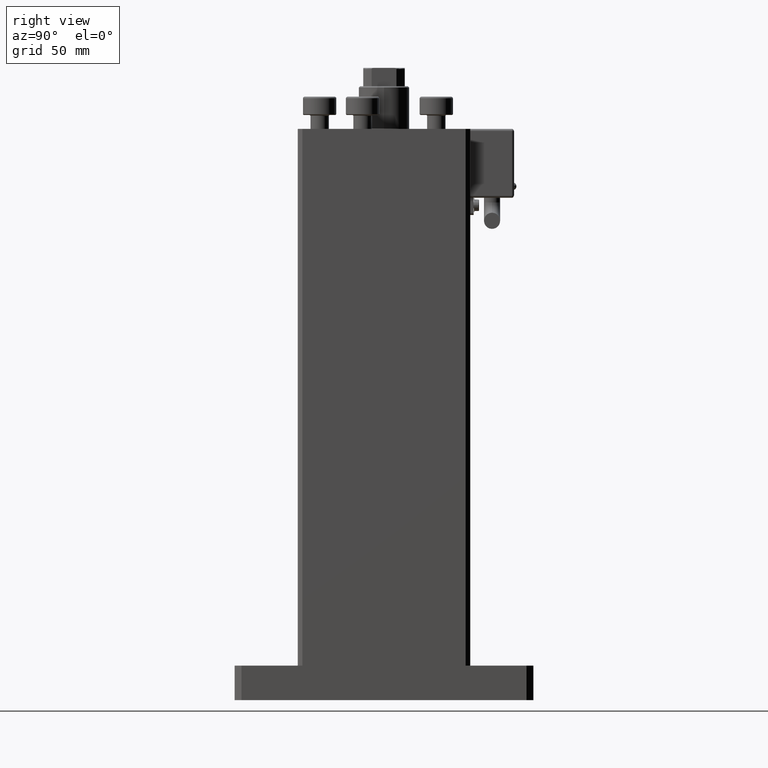
[diagram: clean part render]
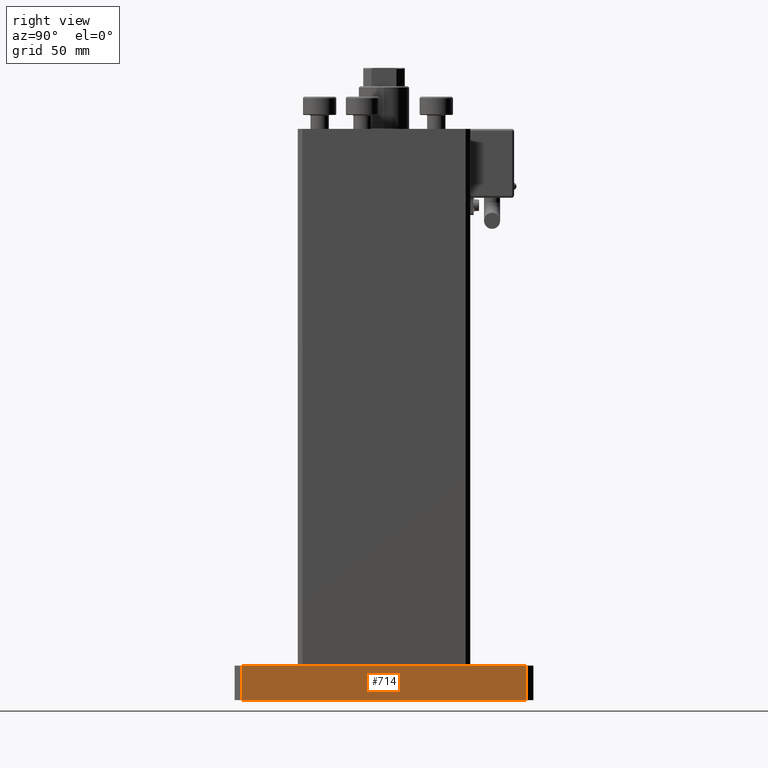
[diagram: same view with one face highlighted and labeled with its STEP entity id]
A machine part, right view. The second image highlights one B-rep face of the part: STEP entity #714.
In plain terms, the highlighted planar face has unit normal (-1, 0, 0).
Its self-contained STEP definition (entity closure, byte-faithful):
#714 = ADVANCED_FACE ( 'NONE', ( #8629 ), #3778, .F. ) ;
#1911 = ORIENTED_EDGE ( 'NONE', *, *, #45597, .T. ) ;
#3498 = LINE ( 'NONE', #8327, #19780 ) ;
#3722 = CARTESIAN_POINT ( 'NONE',  ( 42.50000000000000000, 62.00000000000000711, 15.00000000000000000 ) ) ;
#3778 = PLANE ( 'NONE',  #44612 ) ;
#4623 = ORIENTED_EDGE ( 'NONE', *, *, #44069, .T. ) ;
#5015 = VERTEX_POINT ( 'NONE', #54568 ) ;
#7603 = EDGE_LOOP ( 'NONE', ( #1911, #46423, #37220, #4623 ) ) ;
#7780 = DIRECTION ( 'NONE',  ( 0.000000000000000000, 1.000000000000000000, 0.000000000000000000 ) ) ;
#8327 = CARTESIAN_POINT ( 'NONE',  ( 42.50000000000000000, -61.99999999999988631, 0.000000000000000000 ) ) ;
#8629 = FACE_OUTER_BOUND ( 'NONE', #7603, .T. ) ;
#8762 = LINE ( 'NONE', #22131, #35231 ) ;
#16743 = VERTEX_POINT ( 'NONE', #35194 ) ;
#17020 = CARTESIAN_POINT ( 'NONE',  ( 42.50000000000000000, -61.99999999999988631, 15.00000000000000000 ) ) ;
#17168 = DIRECTION ( 'NONE',  ( 0.000000000000000000, 0.000000000000000000, 1.000000000000000000 ) ) ;
#19780 = VECTOR ( 'NONE', #7780, 1000.000000000000000 ) ;
#20597 = CARTESIAN_POINT ( 'NONE',  ( 42.50000000000000000, -61.99999999999988631, 15.00000000000000000 ) ) ;
#21734 = CARTESIAN_POINT ( 'NONE',  ( 42.50000000000000000, 62.00000000000000711, 0.000000000000000000 ) ) ;
#22131 = CARTESIAN_POINT ( 'NONE',  ( 42.50000000000000000, -61.99999999999988631, 15.00000000000000000 ) ) ;
#25105 = LINE ( 'NONE', #3722, #26675 ) ;
#25714 = DIRECTION ( 'NONE',  ( -1.000000000000000000, 0.000000000000000000, 0.000000000000000000 ) ) ;
#25905 = VECTOR ( 'NONE', #47479, 1000.000000000000000 ) ;
#26000 = CARTESIAN_POINT ( 'NONE',  ( 42.50000000000000000, 62.00000000000000711, 15.00000000000000000 ) ) ;
#26140 = DIRECTION ( 'NONE',  ( -0.000000000000000000, -0.000000000000000000, -1.000000000000000000 ) ) ;
#26675 = VECTOR ( 'NONE', #43312, 1000.000000000000000 ) ;
#27384 = VERTEX_POINT ( 'NONE', #26000 ) ;
#34225 = EDGE_CURVE ( 'NONE', #16743, #27384, #43213, .T. ) ;
#35194 = CARTESIAN_POINT ( 'NONE',  ( 42.50000000000000000, -61.99999999999988631, 15.00000000000000000 ) ) ;
#35231 = VECTOR ( 'NONE', #26140, 1000.000000000000000 ) ;
#37220 = ORIENTED_EDGE ( 'NONE', *, *, #34225, .F. ) ;
#43213 = LINE ( 'NONE', #17020, #25905 ) ;
#43312 = DIRECTION ( 'NONE',  ( -0.000000000000000000, -0.000000000000000000, -1.000000000000000000 ) ) ;
#44069 = EDGE_CURVE ( 'NONE', #16743, #5015, #8762, .T. ) ;
#44612 = AXIS2_PLACEMENT_3D ( 'NONE', #20597, #25714, #17168 ) ;
#45597 = EDGE_CURVE ( 'NONE', #5015, #51897, #3498, .T. ) ;
#46423 = ORIENTED_EDGE ( 'NONE', *, *, #52133, .F. ) ;
#47479 = DIRECTION ( 'NONE',  ( 0.000000000000000000, 1.000000000000000000, 0.000000000000000000 ) ) ;
#51897 = VERTEX_POINT ( 'NONE', #21734 ) ;
#52133 = EDGE_CURVE ( 'NONE', #27384, #51897, #25105, .T. ) ;
#54568 = CARTESIAN_POINT ( 'NONE',  ( 42.50000000000000000, -61.99999999999988631, 0.000000000000000000 ) ) ;